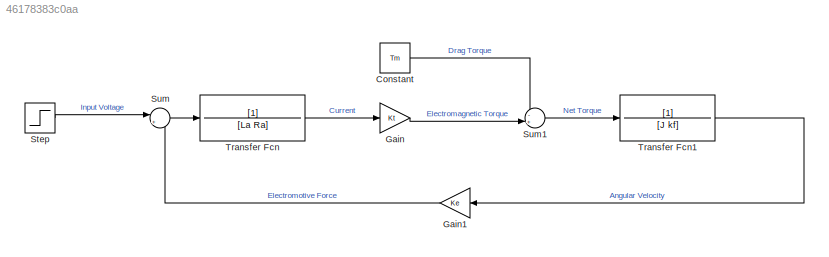
MODEL slx_46178383c0aa
KIND model
CONFIG AbsTol = auto
CONFIG EnableMultiTasking = off
CONFIG FixedStep = auto
CONFIG MaxStep = auto
CONFIG MinStep = auto
CONFIG RelTol = 1e-3
CONFIG SampleTimeConstraint = Unconstrained
CONFIG SolverName = VariableStepAuto
CONFIG StartTime = 0.0
CONFIG StopTime = 0.4
WORKSPACE source: mxarray member
WORKSPACE J = 0.003408
WORKSPACE Ke = 0.0796
WORKSPACE Kt = 0.079
WORKSPACE La = 4.55e-05
WORKSPACE Ra = 0.06
WORKSPACE Tm = 1
WORKSPACE kf = 0.0001
BLOCK [Constant] Constant
  Value = Tm
BLOCK [Gain] Gain
  Gain = Kt
BLOCK [Gain] Gain1
  Gain = Ke
BLOCK [Step] Step
  SampleTime = 0
  Time = 0.1
BLOCK [Sum] Sum
  Inputs = |+-
  Ports = [2, 1]
BLOCK [Sum] Sum1
  Inputs = -+|
  Ports = [2, 1]
BLOCK [TransferFcn] Transfer Fcn
  Denominator = [La Ra]
BLOCK [TransferFcn] Transfer Fcn1
  Denominator = [J kf]
LINE Constant:1 -> Sum1:1
LINE Gain1:1 -> Sum:2
LINE Gain:1 -> Sum1:2
LINE Step:1 -> Sum:1
LINE Sum1:1 -> Transfer Fcn1:1
LINE Sum:1 -> Transfer Fcn:1
LINE Transfer Fcn1:1 -> Gain1:1
LINE Transfer Fcn:1 -> Gain:1
